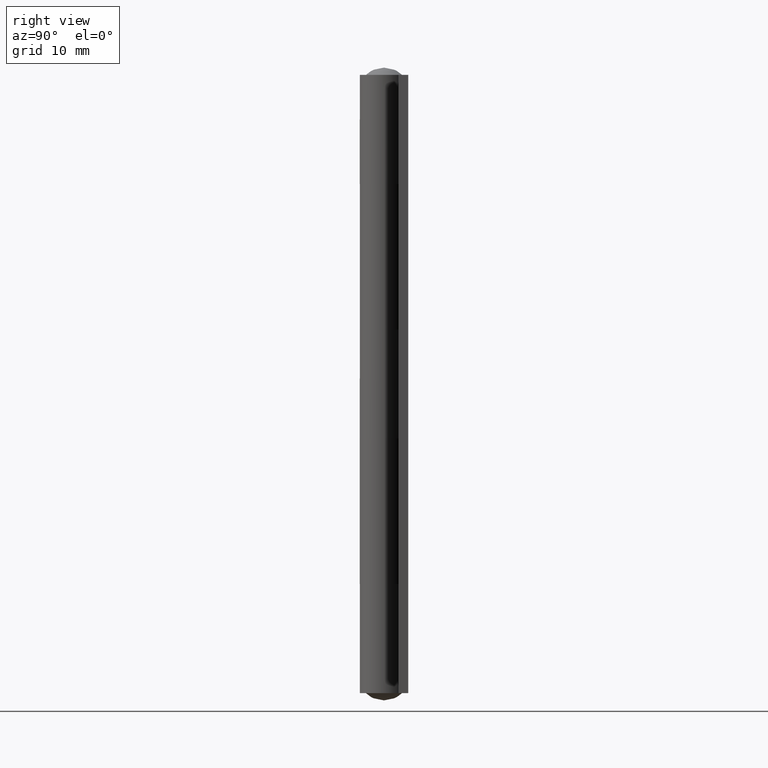
[diagram: clean part render]
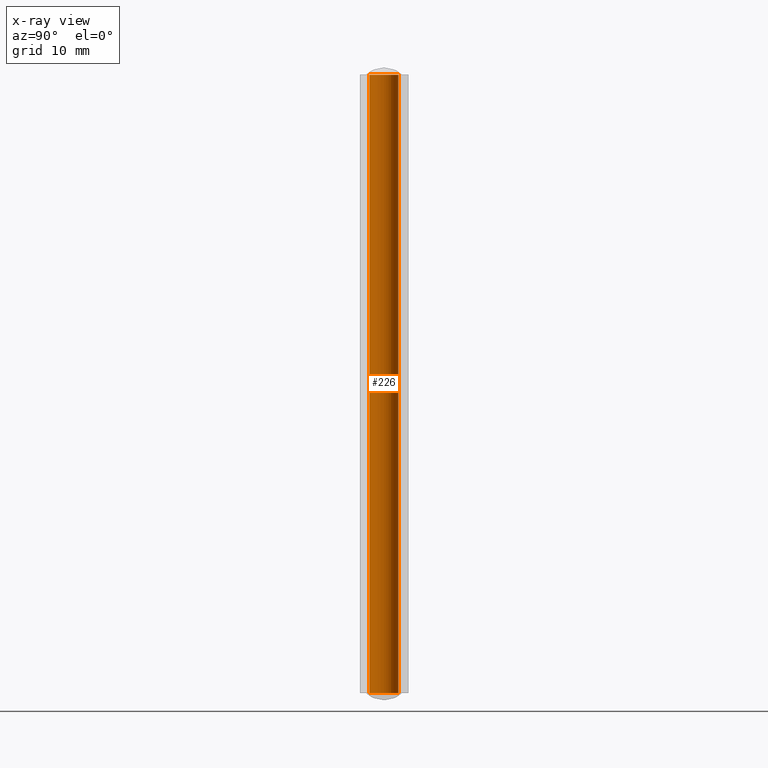
[diagram: x-ray — body ghosted, one internal face saturated and labeled with its STEP entity id]
A machine part, right view, then the same camera in x-ray: the body is ghosted and one INTERNAL B-rep face — a face not visible from any outside direction — is saturated and labeled: STEP entity #226.
In plain terms, the highlighted face is a freeform B-spline surface patch.
Its self-contained STEP definition (entity closure, byte-faithful):
#93=CARTESIAN_POINT('',(1.199999999999932,0.0,0.0));
#94=VERTEX_POINT('',#93);
#95=CARTESIAN_POINT('',(0.073258247748222,-1.197761758087432,-7.672283E-013));
#96=VERTEX_POINT('',#95);
#97=CARTESIAN_POINT('',(1.199999999999932,0.0,0.0));
#98=CARTESIAN_POINT('',(1.199999999999932,-1.128847279997461,-7.244012E-013));
#99=CARTESIAN_POINT('',(0.073258247748222,-1.197761758087432,-7.686248E-013));
#107=(BOUNDED_CURVE()B_SPLINE_CURVE(2,(#97,#98,#99),.UNSPECIFIED.,.F.,.U.)B_SPLINE_CURVE_WITH_KNOTS((3,3),(0.500000000000000,0.739332962197829),.UNSPECIFIED.)CURVE()GEOMETRIC_REPRESENTATION_ITEM()RATIONAL_B_SPLINE_CURVE((1.0,0.719603993334878,0.976072041578604))REPRESENTATION_ITEM(''));
#108=EDGE_CURVE('',#94,#96,#107,.T.);
#127=CARTESIAN_POINT('',(-0.073258247748222,1.197761758087432,-7.679465E-013));
#128=VERTEX_POINT('',#127);
#142=CARTESIAN_POINT('',(-0.073258247748222,1.197761758087432,-7.679465E-013));
#143=CARTESIAN_POINT('',(-0.036663316111933,1.199999999999931,-7.569107E-013));
#144=CARTESIAN_POINT('',(0.0,1.199999999999932,-7.451792E-013));
#145=CARTESIAN_POINT('',(1.199999999999932,1.199999999999932,-3.612060E-013));
#146=CARTESIAN_POINT('',(1.199999999999932,0.0,0.0));
#154=(BOUNDED_CURVE()B_SPLINE_CURVE(2,(#142,#143,#144,#145,#146),.UNSPECIFIED.,.F.,.U.)B_SPLINE_CURVE_WITH_KNOTS((3,2,3),(0.239332962197829,0.250000000000000,0.500000000000000),.UNSPECIFIED.)CURVE()GEOMETRIC_REPRESENTATION_ITEM()RATIONAL_B_SPLINE_CURVE((0.976072041578604,0.987502787851670,1.0,0.707106781186548,1.0))REPRESENTATION_ITEM(''));
#155=EDGE_CURVE('',#128,#94,#154,.T.);
#160=CARTESIAN_POINT('',(-0.073258247441824,1.197761758106172,52.274999999999210));
#161=CARTESIAN_POINT('',(1.124503510664348,1.271020005547996,52.274999999999217));
#162=CARTESIAN_POINT('',(1.197761758106172,0.073258247441824,52.274999999999210));
#163=CARTESIAN_POINT('',(1.271020005547996,-1.124503510664348,52.274999999999217));
#164=CARTESIAN_POINT('',(0.073258247441824,-1.197761758106172,52.274999999999210));
#165=CARTESIAN_POINT('',(-0.073258247441824,1.197761758106172,-1.306875000000773));
#166=CARTESIAN_POINT('',(1.124503510664348,1.271020005547996,-1.306875000000773));
#167=CARTESIAN_POINT('',(1.197761758106172,0.073258247441824,-1.306875000000773));
#168=CARTESIAN_POINT('',(1.271020005547996,-1.124503510664348,-1.306875000000773));
#169=CARTESIAN_POINT('',(0.073258247441824,-1.197761758106172,-1.306875000000773));
#177=(BOUNDED_SURFACE()B_SPLINE_SURFACE(2,1,((#160,#165),(#161,#166),(#162,#167),(#163,#168),(#164,#169)),.UNSPECIFIED.,.F.,.F.,.U.)B_SPLINE_SURFACE_WITH_KNOTS((3,2,3),(2,2),(3.141592653589793,4.712388980384690,6.283185307179586),(0.0,53.581874999999989),.UNSPECIFIED.)GEOMETRIC_REPRESENTATION_ITEM()RATIONAL_B_SPLINE_SURFACE(((1.0,1.0),(0.707106781186548,0.707106781186548),(1.0,1.0),(0.707106781186548,0.707106781186548),(1.0,1.0)))REPRESENTATION_ITEM('')SURFACE());
#178=ORIENTED_EDGE('',*,*,#155,.F.);
#179=CARTESIAN_POINT('',(-0.073258247748222,1.197761758087432,50.999999999999197));
#180=VERTEX_POINT('',#179);
#181=CARTESIAN_POINT('',(-0.073258247748222,1.197761758087432,50.999999999999197));
#182=CARTESIAN_POINT('',(-0.073258247748222,1.197761758087432,-7.679465E-013));
#183=QUASI_UNIFORM_CURVE('',1,(#181,#182),.UNSPECIFIED.,.F.,.U.);
#184=EDGE_CURVE('',#180,#128,#183,.T.);
#185=ORIENTED_EDGE('',*,*,#184,.F.);
#186=CARTESIAN_POINT('',(1.199999999999932,0.0,50.999999999999197));
#187=VERTEX_POINT('',#186);
#188=CARTESIAN_POINT('',(-0.073258247748222,1.197761758087432,50.999999999999197));
#189=CARTESIAN_POINT('',(-0.036663316111933,1.199999999999931,50.999999999999204));
#190=CARTESIAN_POINT('',(0.0,1.199999999999932,50.999999999999197));
#191=CARTESIAN_POINT('',(1.199999999999932,1.199999999999932,50.999999999999204));
#192=CARTESIAN_POINT('',(1.199999999999932,0.0,50.999999999999197));
#200=(BOUNDED_CURVE()B_SPLINE_CURVE(2,(#188,#189,#190,#191,#192),.UNSPECIFIED.,.F.,.U.)B_SPLINE_CURVE_WITH_KNOTS((3,2,3),(0.239332962197829,0.250000000000000,0.500000000000000),.UNSPECIFIED.)CURVE()GEOMETRIC_REPRESENTATION_ITEM()RATIONAL_B_SPLINE_CURVE((0.976072041578604,0.987502787851670,1.0,0.707106781186548,1.0))REPRESENTATION_ITEM(''));
#201=EDGE_CURVE('',#180,#187,#200,.T.);
#202=ORIENTED_EDGE('',*,*,#201,.T.);
#203=CARTESIAN_POINT('',(0.073258247748222,-1.197761758087432,50.999999999999197));
#204=VERTEX_POINT('',#203);
#205=CARTESIAN_POINT('',(1.199999999999932,0.0,50.999999999999197));
#206=CARTESIAN_POINT('',(1.199999999999932,-1.128847279997461,50.999999999999197));
#207=CARTESIAN_POINT('',(0.073258247748222,-1.197761758087432,50.999999999999218));
#215=(BOUNDED_CURVE()B_SPLINE_CURVE(2,(#205,#206,#207),.UNSPECIFIED.,.F.,.U.)B_SPLINE_CURVE_WITH_KNOTS((3,3),(0.500000000000000,0.739332962197829),.UNSPECIFIED.)CURVE()GEOMETRIC_REPRESENTATION_ITEM()RATIONAL_B_SPLINE_CURVE((1.0,0.719603993334878,0.976072041578604))REPRESENTATION_ITEM(''));
#216=EDGE_CURVE('',#187,#204,#215,.T.);
#217=ORIENTED_EDGE('',*,*,#216,.T.);
#218=CARTESIAN_POINT('',(0.073258247748222,-1.197761758087432,50.999999999999197));
#219=CARTESIAN_POINT('',(0.073258247748222,-1.197761758087432,-7.672283E-013));
#220=QUASI_UNIFORM_CURVE('',1,(#218,#219),.UNSPECIFIED.,.F.,.U.);
#221=EDGE_CURVE('',#204,#96,#220,.T.);
#222=ORIENTED_EDGE('',*,*,#221,.T.);
#223=ORIENTED_EDGE('',*,*,#108,.F.);
#224=EDGE_LOOP('',(#178,#185,#202,#217,#222,#223));
#225=FACE_OUTER_BOUND('',#224,.T.);
#226=ADVANCED_FACE('',(#225),#177,.T.);